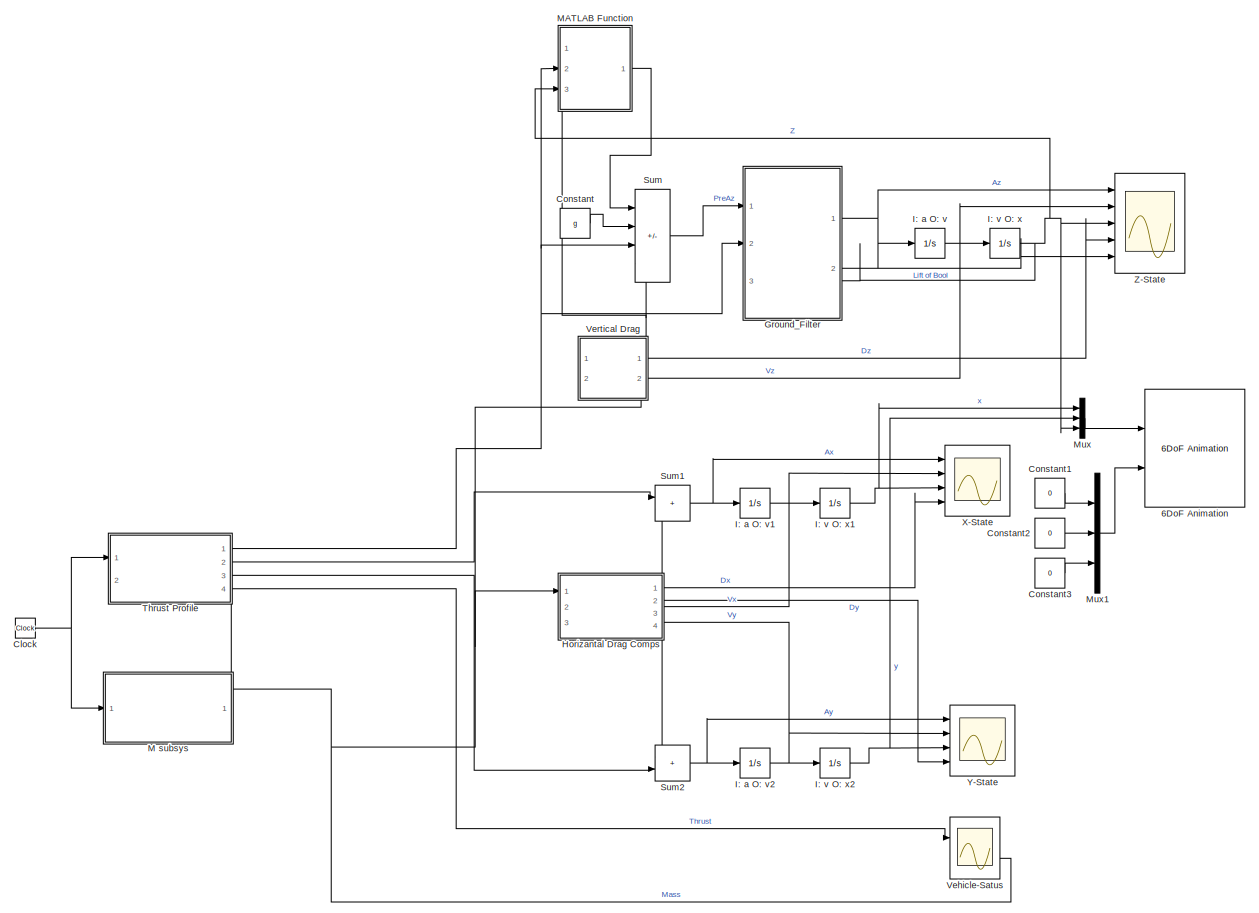
[diagram: root canvas - part 1/1, most of the canvas]
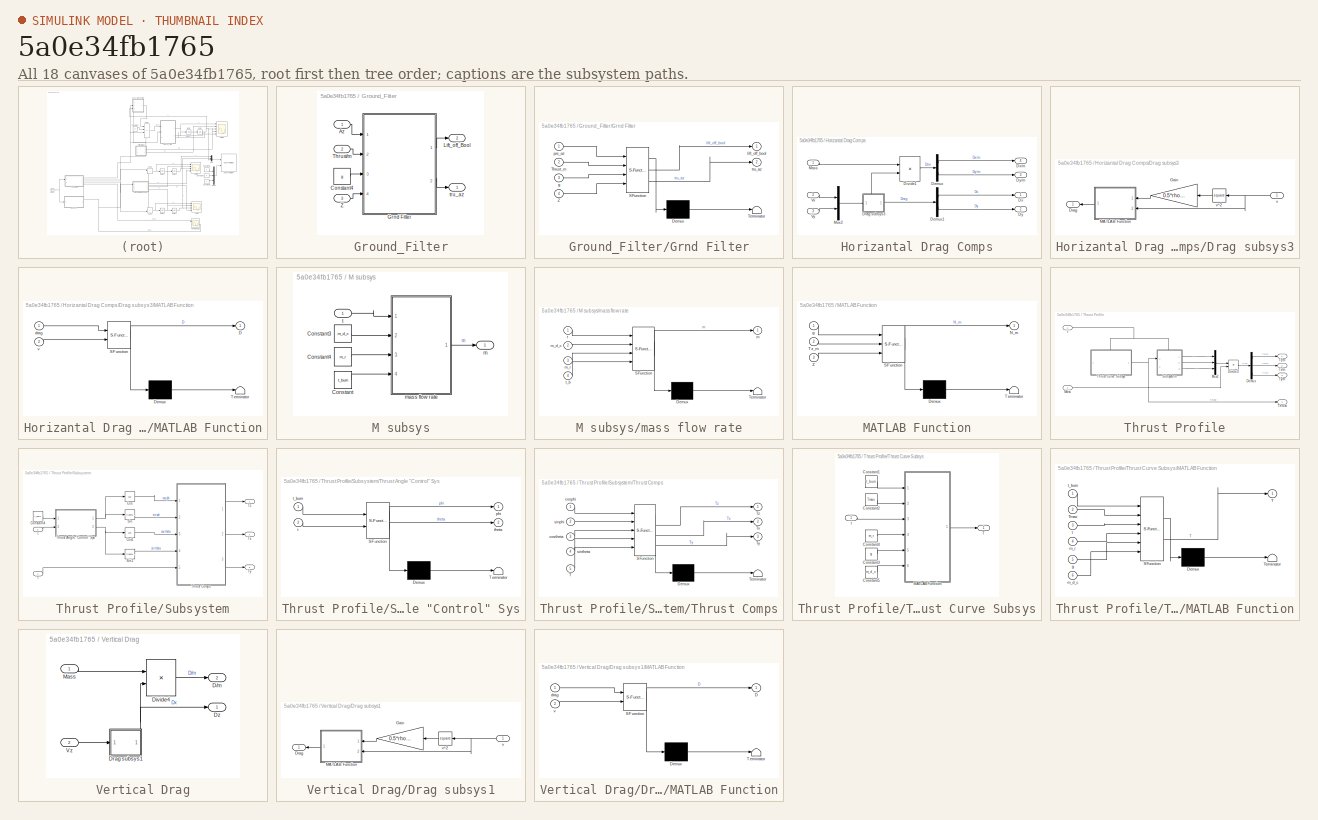
[diagram: thumbnail index - all 18 canvases of the model, root first then tree order]
MODEL slx_5a0e34fb1765
KIND model
CONFIG AbsTol = auto
CONFIG EnableMultiTasking = off
CONFIG FixedStep = auto
CONFIG MaxStep = auto
CONFIG MinStep = auto
CONFIG RelTol = 1e-3
CONFIG SampleTimeConstraint = Unconstrained
CONFIG SolverName = VariableStepAuto
CONFIG StartTime = 0.0
CONFIG StopTime = 5
BLOCK [Reference] 6DoF Animation  REF=aerolibanim/6DoF Animation
  Commented = on
  Ports = [2]
  SourceBlock = aerolibanim/6DoF Animation
  SourceProductBaseCode = AE
  SourceType = 6DoF_Animation
BLOCK [Clock] Clock
  Decimation = 5
BLOCK [Constant] Constant
  Value = g
BLOCK [Constant] Constant1
  Value = 0
BLOCK [Constant] Constant2
  Value = 0
BLOCK [Constant] Constant3
  Value = 0
BLOCK [SubSystem] Ground_Filter
  PortSchema = {"entries":[{"content":{"sides":[{"content":{"connectorIds":["In1","In2"]},"type":"ConnectorPlacement.EquallySpacedRectSide","uuid":"02f139e3-c71d-4215-a05c-2ea7cb935f0c"},{"content":{"connectorIds":["Out1","In3","Out2"],"side":"RIGHT"},"type":"ConnectorPlacement.EquallySpacedRectSide","uuid":"f8d88dc7-1706-414e-8763-66b2344e60f3"},{"content":{"connectorIds":[],"side":"TOP"},"type":"ConnectorPlace...<+259ch>
  Ports = [3, 2]
  RequestExecContextInheritance = off
BLOCK [Inport] Ground_Filter/Az
BLOCK [Constant] Ground_Filter/Constant4
  Value = g
BLOCK [SubSystem] Ground_Filter/Grnd Filter
  ErrorFcn = Stateflow.Translate.translate
  PermitHierarchicalResolution = ExplicitOnly
  Ports = [4, 2]
  RequestExecContextInheritance = off
  SFBlockType = MATLAB Function
  TreatAsAtomicUnit = on
BLOCK [Demux] Ground_Filter/Grnd Filter/ Demux 
  Outputs = 1
  Ports = [1, 1]
BLOCK [S-Function] Ground_Filter/Grnd Filter/ SFunction 
  EnableBusSupport = on
  FunctionName = sf_sfun
  PortCounts = [4 3]
  Ports = [4, 3]
  SFcnIsStateOwnerBlock = off
  SFunctionDeploymentMode = off
  Tag = Stateflow S-Function 12
BLOCK [Terminator] Ground_Filter/Grnd Filter/ Terminator 
BLOCK [Inport] Ground_Filter/Grnd Filter/Thrust_m
  Port = 2
BLOCK [Inport] Ground_Filter/Grnd Filter/Z
  Port = 4
BLOCK [Inport] Ground_Filter/Grnd Filter/g
  Port = 3
BLOCK [Outport] Ground_Filter/Grnd Filter/lift_off_bool
BLOCK [Inport] Ground_Filter/Grnd Filter/pre_az
BLOCK [Outport] Ground_Filter/Grnd Filter/tru_az
  Port = 2
BLOCK [Outport] Ground_Filter/Lift_off_Bool
  Port = 2
BLOCK [Inport] Ground_Filter/Thrust//m
  Port = 2
BLOCK [Inport] Ground_Filter/Z
  Port = 3
BLOCK [Outport] Ground_Filter/tru_az
BLOCK [SubSystem] Horizantal Drag Comps
  PortSchema = {"entries":[{"content":{"sides":[{"content":{"connectorIds":["In1"]},"type":"ConnectorPlacement.EquallySpacedRectSide","uuid":"a9ae7cae-0740-4af7-9b70-c16e835fd7b3"},{"content":{"connectorIds":["In2","Out1","Out2","In3"],"side":"RIGHT"},"type":"ConnectorPlacement.EquallySpacedRectSide","uuid":"8697e8bb-b6ea-43ee-b298-40652abd00a9"},{"content":{"connectorIds":["Out4"],"side":"TOP"},"type":"Connecto...<+415ch>
  Ports = [3, 4]
  RequestExecContextInheritance = off
BLOCK [Demux] Horizantal Drag Comps/Demux
  Outputs = 2
  Ports = [1, 2]
BLOCK [Demux] Horizantal Drag Comps/Demux1
  Outputs = 2
  Ports = [1, 2]
BLOCK [Product] Horizantal Drag Comps/Divide1
  Inputs = /*
  Ports = [2, 1]
BLOCK [SubSystem] Horizantal Drag Comps/Drag subsys3
  PortSchema = {"entries":[{"content":{"sides":[{"content":{"connectorIds":["Out1"]},"type":"ConnectorPlacement.EquallySpacedRectSide","uuid":"59fe94dd-ab30-4deb-857c-de4b730c9c49"},{"content":{"connectorIds":["In1"],"side":"RIGHT"},"type":"ConnectorPlacement.EquallySpacedRectSide","uuid":"6db86113-106d-42a4-8531-3673608ca4b9"},{"content":{"connectorIds":[],"side":"TOP"},"type":"ConnectorPlacement.EquallySpacedR...<+240ch>
  Ports = [1, 1]
  RequestExecContextInheritance = off
BLOCK [Outport] Horizantal Drag Comps/Drag subsys3/Drag
  NameLocation = top
BLOCK [Gain] Horizantal Drag Comps/Drag subsys3/Gain
  Gain = 0.5*rho*Cd*Ar
  NameLocation = top
BLOCK [SubSystem] Horizantal Drag Comps/Drag subsys3/MATLAB Function
  ErrorFcn = Stateflow.Translate.translate
  NameLocation = top
  PermitHierarchicalResolution = ExplicitOnly
  Ports = [2, 1]
  RequestExecContextInheritance = off
  SFBlockType = MATLAB Function
  TreatAsAtomicUnit = on
BLOCK [Demux] Horizantal Drag Comps/Drag subsys3/MATLAB Function/ Demux 
  Outputs = 1
  Ports = [1, 1]
BLOCK [S-Function] Horizantal Drag Comps/Drag subsys3/MATLAB Function/ SFunction 
  EnableBusSupport = on
  FunctionName = sf_sfun
  PortCounts = [2 2]
  Ports = [2, 2]
  SFcnIsStateOwnerBlock = off
  SFunctionDeploymentMode = off
  Tag = Stateflow S-Function 11
BLOCK [Terminator] Horizantal Drag Comps/Drag subsys3/MATLAB Function/ Terminator 
BLOCK [Outport] Horizantal Drag Comps/Drag subsys3/MATLAB Function/D
BLOCK [Inport] Horizantal Drag Comps/Drag subsys3/MATLAB Function/drag
BLOCK [Inport] Horizantal Drag Comps/Drag subsys3/MATLAB Function/v
  Port = 2
BLOCK [Inport] Horizantal Drag Comps/Drag subsys3/v
  NameLocation = top
BLOCK [Math] Horizantal Drag Comps/Drag subsys3/v^2
  NameLocation = top
  Operator = square
  Ports = [1, 1]
BLOCK [Outport] Horizantal Drag Comps/Dx
BLOCK [Outport] Horizantal Drag Comps/Dx//m
  Port = 4
BLOCK [Outport] Horizantal Drag Comps/Dy
  Port = 2
BLOCK [Outport] Horizantal Drag Comps/Dy//m
  Port = 3
BLOCK [Inport] Horizantal Drag Comps/Mass
BLOCK [Mux] Horizantal Drag Comps/Mux2
  DisplayOption = bar
  Inputs = 2
  Ports = [2, 1]
BLOCK [Inport] Horizantal Drag Comps/Vx
  Port = 2
BLOCK [Inport] Horizantal Drag Comps/Vy
  NameLocation = top
  Port = 3
BLOCK [Integrator] I: a O: v
  Ports = [1, 1]
BLOCK [Integrator] I: a O: v1
  Ports = [1, 1]
BLOCK [Integrator] I: a O: v2
  Ports = [1, 1]
BLOCK [Integrator] I: v O: x
  LowerSaturationLimit = 0
  Ports = [1, 1]
BLOCK [Integrator] I: v O: x1
  LowerSaturationLimit = 0
  Ports = [1, 1]
BLOCK [Integrator] I: v O: x2
  LowerSaturationLimit = 0
  Ports = [1, 1]
BLOCK [SubSystem] M subsys
  PortSchema = {"entries":[{"content":{"sides":[{"content":{"connectorIds":["In1"]},"type":"ConnectorPlacement.EquallySpacedRectSide","uuid":"59fe94dd-ab30-4deb-857c-de4b730c9c49"},{"content":{"connectorIds":[],"side":"RIGHT"},"type":"ConnectorPlacement.EquallySpacedRectSide","uuid":"6db86113-106d-42a4-8531-3673608ca4b9"},{"content":{"connectorIds":["Out1"],"side":"TOP"},"type":"ConnectorPlacement.EquallySpacedR...<+240ch>
  Ports = [1, 1]
  RequestExecContextInheritance = off
BLOCK [Constant] M subsys/Constant
  Value = t_burn
BLOCK [Constant] M subsys/Constant3
  Value = m_d_c
BLOCK [Constant] M subsys/Constant4
  Value = m_r
BLOCK [Outport] M subsys/m
BLOCK [SubSystem] M subsys/mass flow rate
  ErrorFcn = Stateflow.Translate.translate
  PermitHierarchicalResolution = ExplicitOnly
  Ports = [4, 1]
  RequestExecContextInheritance = off
  SFBlockType = MATLAB Function
  TreatAsAtomicUnit = on
BLOCK [Demux] M subsys/mass flow rate/ Demux 
  Outputs = 1
  Ports = [1, 1]
BLOCK [S-Function] M subsys/mass flow rate/ SFunction 
  EnableBusSupport = on
  FunctionName = sf_sfun
  PortCounts = [4 2]
  Ports = [4, 2]
  SFcnIsStateOwnerBlock = off
  SFunctionDeploymentMode = off
  Tag = Stateflow S-Function 1
BLOCK [Terminator] M subsys/mass flow rate/ Terminator 
BLOCK [Outport] M subsys/mass flow rate/m
BLOCK [Inport] M subsys/mass flow rate/m_d_c
  Port = 2
BLOCK [Inport] M subsys/mass flow rate/m_r
  Port = 3
BLOCK [Inport] M subsys/mass flow rate/t
BLOCK [Inport] M subsys/mass flow rate/t_b
  Port = 4
BLOCK [Inport] M subsys/t
BLOCK [SubSystem] MATLAB Function
  ErrorFcn = Stateflow.Translate.translate
  PermitHierarchicalResolution = ExplicitOnly
  Ports = [3, 1]
  RequestExecContextInheritance = off
  SFBlockType = MATLAB Function
  TreatAsAtomicUnit = on
BLOCK [Demux] MATLAB Function/ Demux 
  Outputs = 1
  Ports = [1, 1]
BLOCK [S-Function] MATLAB Function/ SFunction 
  EnableBusSupport = off
  FunctionName = sf_sfun
  PortCounts = [3 2]
  Ports = [3, 2]
  SFcnIsStateOwnerBlock = off
  SFunctionDeploymentMode = off
  Tag = Stateflow S-Function 4
BLOCK [Terminator] MATLAB Function/ Terminator 
BLOCK [Outport] MATLAB Function/N_m
BLOCK [Inport] MATLAB Function/Tz_m
  Port = 2
BLOCK [Inport] MATLAB Function/Z
  Port = 3
BLOCK [Inport] MATLAB Function/g
BLOCK [Mux] Mux
  DisplayOption = bar
  Inputs = 3
  Ports = [3, 1]
BLOCK [Mux] Mux1
  DisplayOption = bar
  Inputs = 3
  Ports = [3, 1]
BLOCK [Sum] Sum
  IconShape = rectangular
  Inputs = +-++
  Ports = [4, 1]
BLOCK [Sum] Sum1
  IconShape = rectangular
  Ports = [2, 1]
BLOCK [Sum] Sum2
  IconShape = rectangular
  Ports = [2, 1]
BLOCK [SubSystem] Thrust Profile
  PortSchema = {"entries":[{"content":{"sides":[{"content":{"connectorIds":["In1"]},"type":"ConnectorPlacement.EquallySpacedRectSide","uuid":"b67ae120-5ade-48b2-a7f4-48ac1eddf7d5"},{"content":{"connectorIds":["Out1","Out2","Out3","Out4"],"side":"RIGHT"},"type":"ConnectorPlacement.EquallySpacedRectSide","uuid":"7760dd01-3ce6-4c05-aa90-87925402c3ea"},{"content":{"connectorIds":[],"side":"TOP"},"type":"ConnectorPla...<+410ch>
  Ports = [2, 4]
  RequestExecContextInheritance = off
BLOCK [Demux] Thrust Profile/Demux
  Outputs = 3
  Ports = [1, 3]
BLOCK [Product] Thrust Profile/Divide4
  Inputs = */
  Ports = [2, 1]
BLOCK [Inport] Thrust Profile/Mass
  Port = 2
BLOCK [Mux] Thrust Profile/Mux2
  DisplayOption = bar
  Inputs = 3
  Ports = [3, 1]
BLOCK [SubSystem] Thrust Profile/Subsystem
  PortSchema = {"entries":[{"content":{"sides":[{"content":{"connectorIds":["In1"]},"type":"ConnectorPlacement.EquallySpacedRectSide","uuid":"018992c4-8275-41b6-b967-28a58c9ca20f"},{"content":{"connectorIds":["Out1","Out2","Out3"],"side":"RIGHT"},"type":"ConnectorPlacement.EquallySpacedRectSide","uuid":"629673e7-0247-4186-892d-9522b2c54d6d"},{"content":{"connectorIds":["In2"],"side":"TOP"},"type":"ConnectorPlace...<+259ch>
  Ports = [2, 3]
  RequestExecContextInheritance = off
BLOCK [Constant] Thrust Profile/Subsystem/Constant4
  Value = t_burn
BLOCK [Trigonometry] Thrust Profile/Subsystem/Cos
  Operator = cos
  Ports = [1, 1]
BLOCK [Trigonometry] Thrust Profile/Subsystem/Cos1
  Operator = cos
  Ports = [1, 1]
BLOCK [Trigonometry] Thrust Profile/Subsystem/Sin
  Ports = [1, 1]
BLOCK [Trigonometry] Thrust Profile/Subsystem/Sin1
  Ports = [1, 1]
BLOCK [Inport] Thrust Profile/Subsystem/T
BLOCK [SubSystem] Thrust Profile/Subsystem/Thrust Angle "Control" Sys
  ErrorFcn = Stateflow.Translate.translate
  PermitHierarchicalResolution = ExplicitOnly
  Ports = [2, 2]
  RequestExecContextInheritance = off
  SFBlockType = MATLAB Function
  TreatAsAtomicUnit = on
BLOCK [Demux] Thrust Profile/Subsystem/Thrust Angle "Control" Sys/ Demux 
  Outputs = 1
  Ports = [1, 1]
BLOCK [S-Function] Thrust Profile/Subsystem/Thrust Angle "Control" Sys/ SFunction 
  EnableBusSupport = on
  FunctionName = sf_sfun
  PortCounts = [2 3]
  Ports = [2, 3]
  SFcnIsStateOwnerBlock = off
  SFunctionDeploymentMode = off
  Tag = Stateflow S-Function 10
BLOCK [Terminator] Thrust Profile/Subsystem/Thrust Angle "Control" Sys/ Terminator 
BLOCK [Outport] Thrust Profile/Subsystem/Thrust Angle "Control" Sys/phi
BLOCK [Inport] Thrust Profile/Subsystem/Thrust Angle "Control" Sys/t
  Port = 2
BLOCK [Inport] Thrust Profile/Subsystem/Thrust Angle "Control" Sys/t_burn
BLOCK [Outport] Thrust Profile/Subsystem/Thrust Angle "Control" Sys/theta
  Port = 2
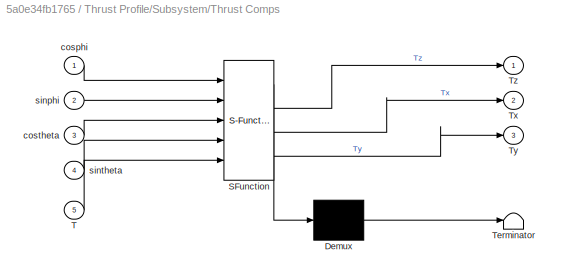
BLOCK [SubSystem] Thrust Profile/Subsystem/Thrust Comps
  ErrorFcn = Stateflow.Translate.translate
  PermitHierarchicalResolution = ExplicitOnly
  Ports = [5, 3]
  RequestExecContextInheritance = off
  SFBlockType = MATLAB Function
  TreatAsAtomicUnit = on
BLOCK [Demux] Thrust Profile/Subsystem/Thrust Comps/ Demux 
  Outputs = 1
  Ports = [1, 1]
BLOCK [S-Function] Thrust Profile/Subsystem/Thrust Comps/ SFunction 
  EnableBusSupport = on
  FunctionName = sf_sfun
  PortCounts = [5 4]
  Ports = [5, 4]
  SFcnIsStateOwnerBlock = off
  SFunctionDeploymentMode = off
  Tag = Stateflow S-Function 13
BLOCK [Terminator] Thrust Profile/Subsystem/Thrust Comps/ Terminator 
BLOCK [Inport] Thrust Profile/Subsystem/Thrust Comps/T
  Port = 5
BLOCK [Outport] Thrust Profile/Subsystem/Thrust Comps/Tx
  Port = 2
BLOCK [Outport] Thrust Profile/Subsystem/Thrust Comps/Ty
  Port = 3
BLOCK [Outport] Thrust Profile/Subsystem/Thrust Comps/Tz
BLOCK [Inport] Thrust Profile/Subsystem/Thrust Comps/cosphi
BLOCK [Inport] Thrust Profile/Subsystem/Thrust Comps/costheta
  Port = 3
BLOCK [Inport] Thrust Profile/Subsystem/Thrust Comps/sinphi
  Port = 2
BLOCK [Inport] Thrust Profile/Subsystem/Thrust Comps/sintheta
  Port = 4
BLOCK [Outport] Thrust Profile/Subsystem/Tx
  Port = 2
BLOCK [Outport] Thrust Profile/Subsystem/Ty
  Port = 3
BLOCK [Outport] Thrust Profile/Subsystem/Tz
BLOCK [Inport] Thrust Profile/Subsystem/t
  Port = 2
BLOCK [Outport] Thrust Profile/Thrust
  Port = 4
BLOCK [SubSystem] Thrust Profile/Thrust Curve Subsys
  PortSchema = {"entries":[{"content":{"sides":[{"content":{"connectorIds":[]},"type":"ConnectorPlacement.EquallySpacedRectSide","uuid":"59fe94dd-ab30-4deb-857c-de4b730c9c49"},{"content":{"connectorIds":["Out1"],"side":"RIGHT"},"type":"ConnectorPlacement.EquallySpacedRectSide","uuid":"6db86113-106d-42a4-8531-3673608ca4b9"},{"content":{"connectorIds":["In1"],"side":"TOP"},"type":"ConnectorPlacement.EquallySpacedR...<+240ch>
  Ports = [1, 1]
  RequestExecContextInheritance = off
BLOCK [Constant] Thrust Profile/Thrust Curve Subsys/Constant1
  Value = t_burn
BLOCK [Constant] Thrust Profile/Thrust Curve Subsys/Constant2
  Value = Tmax
BLOCK [Constant] Thrust Profile/Thrust Curve Subsys/Constant3
  Value = g
BLOCK [Constant] Thrust Profile/Thrust Curve Subsys/Constant4
  Value = m_r
BLOCK [Constant] Thrust Profile/Thrust Curve Subsys/Constant5
  Value = m_d_c
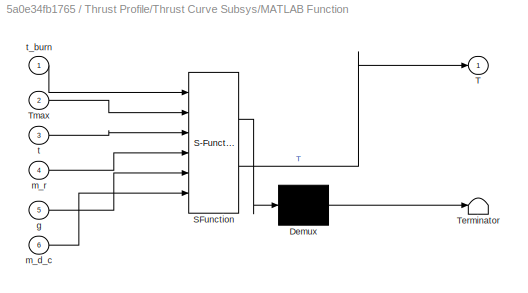
BLOCK [SubSystem] Thrust Profile/Thrust Curve Subsys/MATLAB Function
  ErrorFcn = Stateflow.Translate.translate
  NameLocation = top
  PermitHierarchicalResolution = ExplicitOnly
  Ports = [6, 1]
  RequestExecContextInheritance = off
  SFBlockType = MATLAB Function
  TreatAsAtomicUnit = on
BLOCK [Demux] Thrust Profile/Thrust Curve Subsys/MATLAB Function/ Demux 
  Outputs = 1
  Ports = [1, 1]
BLOCK [S-Function] Thrust Profile/Thrust Curve Subsys/MATLAB Function/ SFunction 
  EnableBusSupport = on
  FunctionName = sf_sfun
  PortCounts = [6 2]
  Ports = [6, 2]
  SFcnIsStateOwnerBlock = off
  SFunctionDeploymentMode = off
  Tag = Stateflow S-Function 2
BLOCK [Terminator] Thrust Profile/Thrust Curve Subsys/MATLAB Function/ Terminator 
BLOCK [Outport] Thrust Profile/Thrust Curve Subsys/MATLAB Function/T
BLOCK [Inport] Thrust Profile/Thrust Curve Subsys/MATLAB Function/Tmax
  Port = 2
BLOCK [Inport] Thrust Profile/Thrust Curve Subsys/MATLAB Function/g
  Port = 5
BLOCK [Inport] Thrust Profile/Thrust Curve Subsys/MATLAB Function/m_d_c
  Port = 6
BLOCK [Inport] Thrust Profile/Thrust Curve Subsys/MATLAB Function/m_r
  Port = 4
BLOCK [Inport] Thrust Profile/Thrust Curve Subsys/MATLAB Function/t
  Port = 3
BLOCK [Inport] Thrust Profile/Thrust Curve Subsys/MATLAB Function/t_burn
BLOCK [Outport] Thrust Profile/Thrust Curve Subsys/T
BLOCK [Inport] Thrust Profile/Thrust Curve Subsys/t
BLOCK [Outport] Thrust Profile/Tx//m
  Port = 2
BLOCK [Outport] Thrust Profile/Ty//m
  Port = 3
BLOCK [Outport] Thrust Profile/Tz//m
BLOCK [Inport] Thrust Profile/t
BLOCK [Scope] Vehicle-Satus
  Floating = off
  NumInputPorts = 2
  Ports = [2]
  ScopeSpecificationString = Simulink.scopes.TimeScopeBlockCfg('CurrentConfiguration', extmgr.ConfigurationSet(extmgr.Configuration('Core','General UI',true),extmgr.Configuration('Core','Source UI',true),extmgr.Configuration('Sources','WiredSimulink',true,'DataLoggingVariableName','ScopeData1'),extmgr.Configuration('Visuals','Time Domain',true,'SerializedDisplays',{struct('MinYLimReal','-1.18865','MaxYLimReal','10.69784','YLa...<+2029ch>
BLOCK [SubSystem] Vertical Drag
  PortSchema = {"entries":[{"content":{"sides":[{"content":{"connectorIds":["In1"]},"type":"ConnectorPlacement.EquallySpacedRectSide","uuid":"72cb64b5-de92-49f0-81ee-1566d770d166"},{"content":{"connectorIds":["In2","Out1"],"side":"RIGHT"},"type":"ConnectorPlacement.EquallySpacedRectSide","uuid":"ba77af52-770b-4a76-8b2e-e7cb196d7331"},{"content":{"connectorIds":["Out2"],"side":"TOP"},"type":"ConnectorPlacement.Eq...<+252ch>
  Ports = [2, 2]
  RequestExecContextInheritance = off
BLOCK [Outport] Vertical Drag/D//m
  Port = 2
BLOCK [Product] Vertical Drag/Divide4
  Inputs = /*
  Ports = [2, 1]
BLOCK [SubSystem] Vertical Drag/Drag subsys1
  PortSchema = {"entries":[{"content":{"sides":[{"content":{"connectorIds":[]},"type":"ConnectorPlacement.EquallySpacedRectSide","uuid":"59fe94dd-ab30-4deb-857c-de4b730c9c49"},{"content":{"connectorIds":["In1"],"side":"RIGHT"},"type":"ConnectorPlacement.EquallySpacedRectSide","uuid":"6db86113-106d-42a4-8531-3673608ca4b9"},{"content":{"connectorIds":[],"side":"TOP"},"type":"ConnectorPlacement.EquallySpacedRectSid...<+384ch>
  Ports = [1, 1]
  RequestExecContextInheritance = off
BLOCK [Outport] Vertical Drag/Drag subsys1/Drag
  NameLocation = top
BLOCK [Gain] Vertical Drag/Drag subsys1/Gain
  Gain = 0.5*rho*Cd*Ar
  NameLocation = top
BLOCK [SubSystem] Vertical Drag/Drag subsys1/MATLAB Function
  ErrorFcn = Stateflow.Translate.translate
  NameLocation = top
  PermitHierarchicalResolution = ExplicitOnly
  Ports = [2, 1]
  RequestExecContextInheritance = off
  SFBlockType = MATLAB Function
  TreatAsAtomicUnit = on
BLOCK [Demux] Vertical Drag/Drag subsys1/MATLAB Function/ Demux 
  Outputs = 1
  Ports = [1, 1]
BLOCK [S-Function] Vertical Drag/Drag subsys1/MATLAB Function/ SFunction 
  EnableBusSupport = on
  FunctionName = sf_sfun
  PortCounts = [2 2]
  Ports = [2, 2]
  SFcnIsStateOwnerBlock = off
  SFunctionDeploymentMode = off
  Tag = Stateflow S-Function 3
BLOCK [Terminator] Vertical Drag/Drag subsys1/MATLAB Function/ Terminator 
BLOCK [Outport] Vertical Drag/Drag subsys1/MATLAB Function/D
BLOCK [Inport] Vertical Drag/Drag subsys1/MATLAB Function/drag
BLOCK [Inport] Vertical Drag/Drag subsys1/MATLAB Function/v
  Port = 2
BLOCK [Inport] Vertical Drag/Drag subsys1/v
  NameLocation = top
BLOCK [Math] Vertical Drag/Drag subsys1/v^2
  NameLocation = top
  Operator = square
  Ports = [1, 1]
BLOCK [Outport] Vertical Drag/Dz
BLOCK [Inport] Vertical Drag/Mass
BLOCK [Inport] Vertical Drag/Vz
  Port = 2
BLOCK [Scope] X-State
  Floating = off
  NumInputPorts = 4
  Ports = [4]
  ScopeSpecificationString = Simulink.scopes.TimeScopeBlockCfg('CurrentConfiguration', extmgr.ConfigurationSet(extmgr.Configuration('Core','General UI',true),extmgr.Configuration('Core','Source UI',true),extmgr.Configuration('Sources','WiredSimulink',true,'DataLoggingVariableName','ScopeData3'),extmgr.Configuration('Visuals','Time Domain',true,'SerializedDisplays',{struct('MinYLimReal','-12.67469','MaxYLimReal','12.78184','YL...<+3441ch>
BLOCK [Scope] Y-State
  Floating = off
  NumInputPorts = 4
  Ports = [4]
  ScopeSpecificationString = Simulink.scopes.TimeScopeBlockCfg('CurrentConfiguration', extmgr.ConfigurationSet(extmgr.Configuration('Core','General UI',true),extmgr.Configuration('Core','Source UI',true),extmgr.Configuration('Sources','WiredSimulink',true,'DataLoggingVariableName','ScopeData5'),extmgr.Configuration('Visuals','Time Domain',true,'SerializedDisplays',{struct('MinYLimReal','-12.69636','MaxYLimReal','12.72842','YL...<+3443ch>
BLOCK [Scope] Z-State
  Floating = off
  NumInputPorts = 5
  Ports = [5]
  ScopeSpecificationString = Simulink.scopes.TimeScopeBlockCfg('CurrentConfiguration', extmgr.ConfigurationSet(extmgr.Configuration('Core','General UI',true),extmgr.Configuration('Core','Source UI',true),extmgr.Configuration('Sources','WiredSimulink',true,'DataLoggingVariableName','ZState','DataLogging',true),extmgr.Configuration('Visuals','Time Domain',true,'SerializedDisplays',{struct('MinYLimReal','-12.54786','MaxYLimReal'...<+4841ch>
NET Clock:1 -> M subsys:1, Thrust Profile:1
LINE Constant1:1 -> Mux1:1
LINE Constant2:1 -> Mux1:2
LINE Constant3:1 -> Mux1:3
LINE Constant:1 -> Sum:2
LINE Ground_Filter/Az:1 -> Ground_Filter/Grnd Filter:1
LINE Ground_Filter/Constant4:1 -> Ground_Filter/Grnd Filter:3
LINE Ground_Filter/Grnd Filter:1 -> Ground_Filter/Lift_off_Bool:1
LINE Ground_Filter/Grnd Filter:2 -> Ground_Filter/tru_az:1
LINE Ground_Filter/Thrust//m:1 -> Ground_Filter/Grnd Filter:2
LINE Ground_Filter/Z:1 -> Ground_Filter/Grnd Filter:4
NET Ground_Filter:1 -> I: a O: v:1, Z-State:1
LINE Ground_Filter:2 -> Z-State:5
LINE Horizantal Drag Comps/Demux1:1 -> Horizantal Drag Comps/Dx:1
LINE Horizantal Drag Comps/Demux1:2 -> Horizantal Drag Comps/Dy:1
LINE Horizantal Drag Comps/Demux:1 -> Horizantal Drag Comps/Dx//m:1
LINE Horizantal Drag Comps/Demux:2 -> Horizantal Drag Comps/Dy//m:1
LINE Horizantal Drag Comps/Divide1:1 -> Horizantal Drag Comps/Demux:1
LINE Horizantal Drag Comps/Drag subsys3/Gain:1 -> Horizantal Drag Comps/Drag subsys3/MATLAB Function:1
LINE Horizantal Drag Comps/Drag subsys3/MATLAB Function:1 -> Horizantal Drag Comps/Drag subsys3/Drag:1
NET Horizantal Drag Comps/Drag subsys3/v:1 -> Horizantal Drag Comps/Drag subsys3/MATLAB Function:2, Horizantal Drag Comps/Drag subsys3/v^2:1
LINE Horizantal Drag Comps/Drag subsys3/v^2:1 -> Horizantal Drag Comps/Drag subsys3/Gain:1
NET Horizantal Drag Comps/Drag subsys3:1 -> Horizantal Drag Comps/Demux1:1, Horizantal Drag Comps/Divide1:2
LINE Horizantal Drag Comps/Mass:1 -> Horizantal Drag Comps/Divide1:1
LINE Horizantal Drag Comps/Mux2:1 -> Horizantal Drag Comps/Drag subsys3:1
LINE Horizantal Drag Comps/Vx:1 -> Horizantal Drag Comps/Mux2:1
LINE Horizantal Drag Comps/Vy:1 -> Horizantal Drag Comps/Mux2:2
LINE Horizantal Drag Comps:1 -> X-State:4
LINE Horizantal Drag Comps:2 -> Y-State:4
LINE Horizantal Drag Comps:3 -> Sum2:1
LINE Horizantal Drag Comps:4 -> Sum1:2
NET I: a O: v1:1 -> Horizantal Drag Comps:2, I: v O: x1:1, X-State:2
NET I: a O: v2:1 -> Horizantal Drag Comps:3, I: v O: x2:1, Y-State:2
NET I: a O: v:1 -> I: v O: x:1, Vertical Drag:2, Z-State:2
NET I: v O: x1:1 -> Mux:1, X-State:3
NET I: v O: x2:1 -> Mux:2, Y-State:3
NET I: v O: x:1 -> Ground_Filter:3, MATLAB Function:3, Mux:3, Z-State:3
LINE M subsys/Constant3:1 -> M subsys/mass flow rate:2
LINE M subsys/Constant4:1 -> M subsys/mass flow rate:3
LINE M subsys/Constant:1 -> M subsys/mass flow rate:4
LINE M subsys/mass flow rate:1 -> M subsys/m:1
LINE M subsys/t:1 -> M subsys/mass flow rate:1
NET M subsys:1 -> Horizantal Drag Comps:1, Thrust Profile:2, Vehicle-Satus:2, Vertical Drag:1
LINE MATLAB Function:1 -> Sum:1
LINE Mux1:1 -> 6DoF Animation:2
LINE Mux:1 -> 6DoF Animation:1
NET Sum1:1 -> I: a O: v1:1, X-State:1
NET Sum2:1 -> I: a O: v2:1, Y-State:1
LINE Sum:1 -> Ground_Filter:1
LINE Thrust Profile/Demux:1 -> Thrust Profile/Tz//m:1
LINE Thrust Profile/Demux:2 -> Thrust Profile/Tx//m:1
LINE Thrust Profile/Demux:3 -> Thrust Profile/Ty//m:1
LINE Thrust Profile/Divide4:1 -> Thrust Profile/Demux:1
LINE Thrust Profile/Mass:1 -> Thrust Profile/Divide4:2
LINE Thrust Profile/Mux2:1 -> Thrust Profile/Divide4:1
LINE Thrust Profile/Subsystem/Constant4:1 -> Thrust Profile/Subsystem/Thrust Angle "Control" Sys:1
LINE Thrust Profile/Subsystem/Cos1:1 -> Thrust Profile/Subsystem/Thrust Comps:3
LINE Thrust Profile/Subsystem/Cos:1 -> Thrust Profile/Subsystem/Thrust Comps:1
LINE Thrust Profile/Subsystem/Sin1:1 -> Thrust Profile/Subsystem/Thrust Comps:4
LINE Thrust Profile/Subsystem/Sin:1 -> Thrust Profile/Subsystem/Thrust Comps:2
LINE Thrust Profile/Subsystem/T:1 -> Thrust Profile/Subsystem/Thrust Comps:5
NET Thrust Profile/Subsystem/Thrust Angle "Control" Sys:1 -> Thrust Profile/Subsystem/Cos:1, Thrust Profile/Subsystem/Sin:1
NET Thrust Profile/Subsystem/Thrust Angle "Control" Sys:2 -> Thrust Profile/Subsystem/Cos1:1, Thrust Profile/Subsystem/Sin1:1
LINE Thrust Profile/Subsystem/Thrust Comps:1 -> Thrust Profile/Subsystem/Tz:1
LINE Thrust Profile/Subsystem/Thrust Comps:2 -> Thrust Profile/Subsystem/Tx:1
LINE Thrust Profile/Subsystem/Thrust Comps:3 -> Thrust Profile/Subsystem/Ty:1
LINE Thrust Profile/Subsystem/t:1 -> Thrust Profile/Subsystem/Thrust Angle "Control" Sys:2
LINE Thrust Profile/Subsystem:1 -> Thrust Profile/Mux2:1
LINE Thrust Profile/Subsystem:2 -> Thrust Profile/Mux2:2
LINE Thrust Profile/Subsystem:3 -> Thrust Profile/Mux2:3
LINE Thrust Profile/Thrust Curve Subsys/Constant1:1 -> Thrust Profile/Thrust Curve Subsys/MATLAB Function:1
LINE Thrust Profile/Thrust Curve Subsys/Constant2:1 -> Thrust Profile/Thrust Curve Subsys/MATLAB Function:2
LINE Thrust Profile/Thrust Curve Subsys/Constant3:1 -> Thrust Profile/Thrust Curve Subsys/MATLAB Function:5
LINE Thrust Profile/Thrust Curve Subsys/Constant4:1 -> Thrust Profile/Thrust Curve Subsys/MATLAB Function:4
LINE Thrust Profile/Thrust Curve Subsys/Constant5:1 -> Thrust Profile/Thrust Curve Subsys/MATLAB Function:6
LINE Thrust Profile/Thrust Curve Subsys/MATLAB Function:1 -> Thrust Profile/Thrust Curve Subsys/T:1
LINE Thrust Profile/Thrust Curve Subsys/t:1 -> Thrust Profile/Thrust Curve Subsys/MATLAB Function:3
NET Thrust Profile/Thrust Curve Subsys:1 -> Thrust Profile/Subsystem:1, Thrust Profile/Thrust:1
NET Thrust Profile/t:1 -> Thrust Profile/Subsystem:2, Thrust Profile/Thrust Curve Subsys:1
NET Thrust Profile:1 -> Ground_Filter:2, MATLAB Function:2, Sum:3
LINE Thrust Profile:2 -> Sum1:1
LINE Thrust Profile:3 -> Sum2:2
LINE Thrust Profile:4 -> Vehicle-Satus:1
LINE Vertical Drag/Divide4:1 -> Vertical Drag/D//m:1
LINE Vertical Drag/Drag subsys1/Gain:1 -> Vertical Drag/Drag subsys1/MATLAB Function:1
LINE Vertical Drag/Drag subsys1/MATLAB Function:1 -> Vertical Drag/Drag subsys1/Drag:1
NET Vertical Drag/Drag subsys1/v:1 -> Vertical Drag/Drag subsys1/MATLAB Function:2, Vertical Drag/Drag subsys1/v^2:1
LINE Vertical Drag/Drag subsys1/v^2:1 -> Vertical Drag/Drag subsys1/Gain:1
NET Vertical Drag/Drag subsys1:1 -> Vertical Drag/Divide4:2, Vertical Drag/Dz:1
LINE Vertical Drag/Mass:1 -> Vertical Drag/Divide4:1
LINE Vertical Drag/Vz:1 -> Vertical Drag/Drag subsys1:1
LINE Vertical Drag:1 -> Z-State:4
NET Vertical Drag:2 -> MATLAB Function:1, Sum:4
note: NET lines group one-source signal fan-out (src -> all destinations, sorted); 1:1 wires keep LINE
CHART M subsys/mass flow rate states=1 transitions=1
  STATE_LABEL 'eML_blk_kernel()'
  STATE_LABEL "SCRIPT:\nfunction m = m_flow(t, m_d_c, m_r, t_b)\n%Const Define in 'constants1DoF.m'\n%out mass at time t\n\n\nif t <= t_b \n    m= -m_d_c*t + m_r;\nelse\n    m = -m_d_c*t_b + m_r;\nend\n"
CHART Thrust Profile/Thrust Curve Subsys/MATLAB Function states=1 transitions=1
  STATE_LABEL 'eML_blk_kernel()'
  STATE_LABEL "SCRIPT:\nfunction T = T_of_t(t_burn, Tmax, t, m_r, g,m_d_c)\n%Approx Thurst Curve.\n%Total Burn time = 1s\n%Max Thrust 100N\n\n%Constants Defined in 'constants1DoF.m'\nx_hf = t_burn/2;\na = Tmax/((x_hf)*(x_hf - t_burn));\n\n%linear down slope after peak thrust\n\n%Consider making weight dynamic function later\nw_f = m_r*g - t_burn*m_d_c; %Final Weight\n\nslope = (w_f - Tmax)/(0.5*t_burn);\n\nif t<=0\n    T = 0; %de...<+156ch>"
CHART Vertical Drag/Drag subsys1/MATLAB Function states=1 transitions=1
  STATE_LABEL 'eML_blk_kernel()'
  STATE_LABEL 'SCRIPT:\nfunction D = sign_change(drag, v)\n%changes signs of Drag when appropiate. Drag is always opposite to velocity\n\nif v>0\n    D = -drag;\nelse\n    D = drag;\nend\n'
CHART MATLAB Function states=1 transitions=1
  STATE_LABEL 'eML_blk_kernel()'
  STATE_LABEL 'SCRIPT:\nfunction N_m = fcn(g , Tz_m, Z)\n\nif Z <= 0\n    N_m = g - Tz_m;\nelse\n    N_m = 0;\nend\n'
CHART Thrust Profile/Subsystem/Thrust Angle "Control" Sys states=1 transitions=1
  STATE_LABEL 'eML_blk_kernel()'
  STATE_LABEL 'SCRIPT:\nfunction [phi,theta] = T_angle(t_burn, t)\n%Assuming Spherical Coordinates\ndummyconst = 1; %random debug/test const.\n\nif t<=t_burn\n    theta = 0;\n    phi = 0;\nelse\n    theta = dummyconst * t;\n    phi = pi/2;\nend'
CHART Horizantal Drag Comps/Drag subsys3/MATLAB Function states=1 transitions=1
  STATE_LABEL 'eML_blk_kernel()'
  STATE_LABEL 'SCRIPT:\nfunction D = sign_change(drag, v)\n%changes signs of Drag when appropiate. Drag is always opposite to velocity\n\nif v>0\n    D = -drag;\nelse\n    D = drag;\nend\n'
CHART Ground_Filter/Grnd Filter states=1 transitions=1
  STATE_LABEL 'eML_blk_kernel()'
  STATE_LABEL 'SCRIPT:\nfunction [lift_off_bool, tru_az]= grndFilter(pre_az, Thrust_m, g, Z)\n%Ground condition. Acc = 0 until Thrust > weight\n\nif Thrust_m<=g && Z==0\n    lift_off_bool = false;\n    tru_az = 0;\nelse\n    tru_az = pre_az;\n    lift_off_bool = true;\nend\n'
CHART Thrust Profile/Subsystem/Thrust Comps states=1 transitions=1
  STATE_LABEL 'eML_blk_kernel()'
  STATE_LABEL 'SCRIPT:\nfunction [Tz, Tx, Ty] = fcn(cosphi,sinphi,costheta,sintheta, T)\n\nTxy = T*sinphi; %T Proj onto xy-plane\n\nTz = T*cosphi;\nTx = Txy*costheta;\nTy = Txy*sintheta;\nend'
CHART  states=0 transitions=0
CHART  states=0 transitions=0
CHART  states=0 transitions=0
CHART  states=0 transitions=0
CHART  states=0 transitions=0
CHART  states=0 transitions=0
CHART  states=0 transitions=0
CHART  states=0 transitions=0
